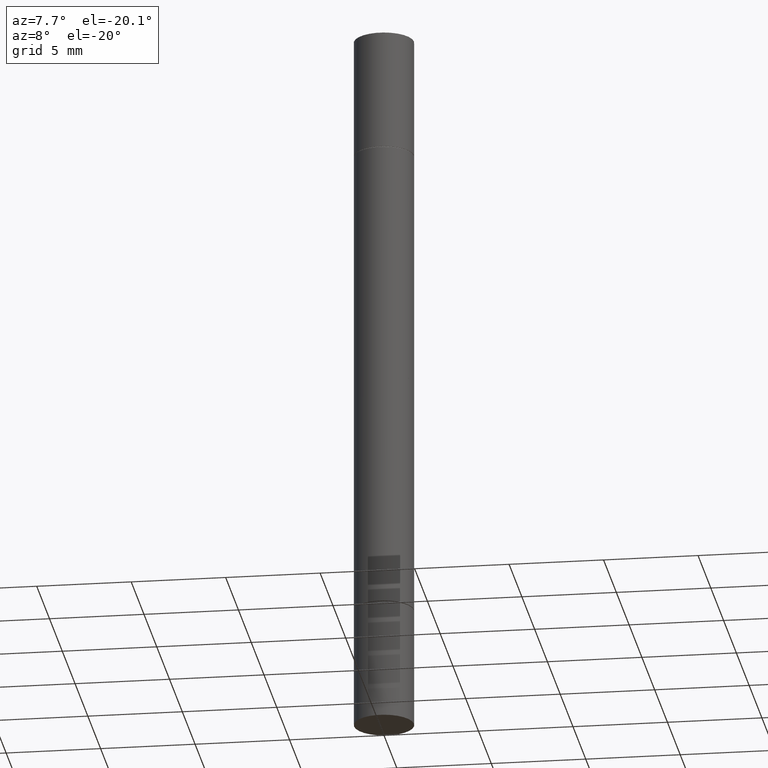
[diagram: clean part render]
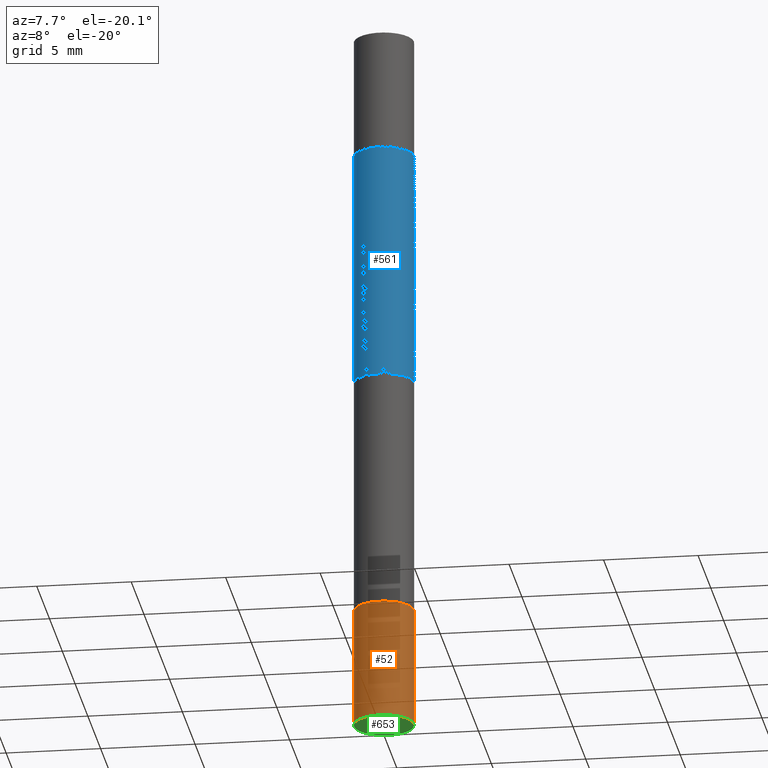
[diagram: same view with three faces highlighted in distinct colors, each labeled with its STEP entity id]
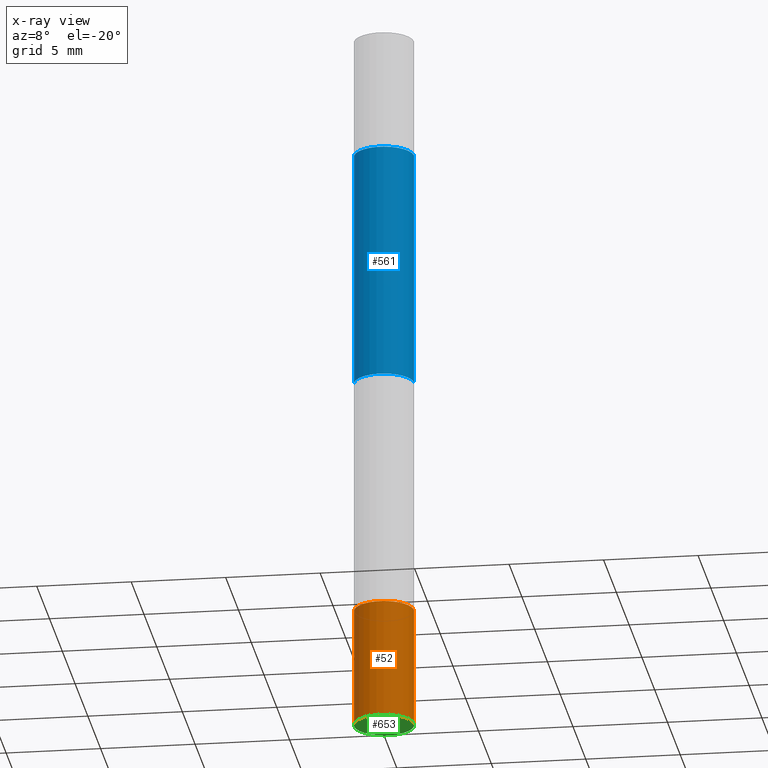
[diagram: x-ray of the same camera — body ghosted, the three highlighted faces saturated]
A machine part, auxiliary view with three faces highlighted in distinct colors.
The next image is the same camera in x-ray (body ghosted, the three faces saturated) — at least one of them is partly hidden behind the body in this view.
Their STEP definitions:

[orange] entity #52 — the highlighted cylindrical surface (edge-blend (fillet) strip) has radius 1.5875 mm, axis along (-0, 0, 1).
#9 = CARTESIAN_POINT ( 'NONE',  ( 0.06250000000000001388, -4.800786840909324141E-15, -1.250000000000000000 ) ) ;
#23 = ORIENTED_EDGE ( 'NONE', *, *, #214, .T. ) ;
#27 = VECTOR ( 'NONE', #264, 39.37007874015748143 ) ;
#31 = DIRECTION ( 'NONE',  ( -2.445468806185136597E-29, 3.491481338843145583E-15, 1.000000000000000000 ) ) ;
#40 = AXIS2_PLACEMENT_3D ( 'NONE', #641, #170, #481 ) ;
#52 = ADVANCED_FACE ( 'NONE', ( #141 ), #560, .T. ) ;
#109 = CARTESIAN_POINT ( 'NONE',  ( -0.06250000000000001388, -4.356697631059263102E-15, -1.500000000000000222 ) ) ;
#130 = EDGE_CURVE ( 'NONE', #448, #664, #149, .T. ) ;
#136 = AXIS2_PLACEMENT_3D ( 'NONE', #379, #330, #280 ) ;
#141 = FACE_OUTER_BOUND ( 'NONE', #680, .T. ) ;
#149 = CIRCLE ( 'NONE', #40, 0.06250000000000001388 ) ;
#157 = EDGE_CURVE ( 'NONE', #384, #448, #416, .T. ) ;
#170 = DIRECTION ( 'NONE',  ( -2.445468806185136597E-29, 3.491481338843145583E-15, 1.000000000000000000 ) ) ;
#214 = EDGE_CURVE ( 'NONE', #672, #664, #281, .T. ) ;
#244 = CARTESIAN_POINT ( 'NONE',  ( 0.06250000000000001388, -4.364351673553918173E-16, 3.047610484872460571E-30 ) ) ;
#264 = DIRECTION ( 'NONE',  ( -2.445468806185136877E-29, 3.491481338843145188E-15, 1.000000000000000000 ) ) ;
#280 = DIRECTION ( 'NONE',  ( 1.000000000000000000, -6.982962677686261189E-15, 0.000000000000000000 ) ) ;
#281 = LINE ( 'NONE', #244, #318 ) ;
#299 = CARTESIAN_POINT ( 'NONE',  ( 0.000000000000000000, 0.000000000000000000, 0.000000000000000000 ) ) ;
#318 = VECTOR ( 'NONE', #402, 39.37007874015748143 ) ;
#330 = DIRECTION ( 'NONE',  ( -2.445468806185136597E-29, 3.491481338843145583E-15, 1.000000000000000000 ) ) ;
#346 = CIRCLE ( 'NONE', #136, 0.06250000000000001388 ) ;
#369 = AXIS2_PLACEMENT_3D ( 'NONE', #299, #31, #548 ) ;
#379 = CARTESIAN_POINT ( 'NONE',  ( 3.668203209277704895E-29, -5.237222008264718177E-15, -1.500000000000000222 ) ) ;
#384 = VERTEX_POINT ( 'NONE', #109 ) ;
#402 = DIRECTION ( 'NONE',  ( -2.445468806185136877E-29, 3.491481338843145188E-15, 1.000000000000000000 ) ) ;
#416 = LINE ( 'NONE', #634, #27 ) ;
#434 = ORIENTED_EDGE ( 'NONE', *, *, #130, .F. ) ;
#435 = CARTESIAN_POINT ( 'NONE',  ( 0.06250000000000001388, -5.673657175620109846E-15, -1.500000000000000222 ) ) ;
#448 = VERTEX_POINT ( 'NONE', #524 ) ;
#481 = DIRECTION ( 'NONE',  ( 1.000000000000000000, -6.982962677686269077E-15, 0.000000000000000000 ) ) ;
#508 = ORIENTED_EDGE ( 'NONE', *, *, #157, .F. ) ;
#524 = CARTESIAN_POINT ( 'NONE',  ( -0.06250000000000001388, -4.356697631059263102E-15, -1.250000000000000000 ) ) ;
#548 = DIRECTION ( 'NONE',  ( 1.000000000000000000, -6.982962677686267499E-15, 4.876176775795935793E-29 ) ) ;
#560 = CYLINDRICAL_SURFACE ( 'NONE', #369, 0.06250000000000001388 ) ;
#575 = ORIENTED_EDGE ( 'NONE', *, *, #669, .T. ) ;
#634 = CARTESIAN_POINT ( 'NONE',  ( -0.06250000000000001388, 4.440892098500627148E-16, -3.074334431409317165E-30 ) ) ;
#641 = CARTESIAN_POINT ( 'NONE',  ( 3.056836007731421306E-29, -4.364351673553932471E-15, -1.250000000000000000 ) ) ;
#664 = VERTEX_POINT ( 'NONE', #9 ) ;
#669 = EDGE_CURVE ( 'NONE', #384, #672, #346, .T. ) ;
#672 = VERTEX_POINT ( 'NONE', #435 ) ;
#680 = EDGE_LOOP ( 'NONE', ( #508, #575, #23, #434 ) ) ;

[blue] entity #561 — the highlighted cylindrical surface (edge-blend (fillet) strip) has radius 1.5875 mm, axis along (-0, -0, -1).
#6 = CARTESIAN_POINT ( 'NONE',  ( 3.054390538925235704E-29, -8.756586887680336100E-16, -0.2509999999999998899 ) ) ;
#16 = CARTESIAN_POINT ( 'NONE',  ( 0.06249999999999996531, -2.183570013805587378E-15, -0.7499999999999998890 ) ) ;
#34 = EDGE_CURVE ( 'NONE', #662, #442, #437, .T. ) ;
#39 = CARTESIAN_POINT ( 'NONE',  ( 1.834101604638852167E-29, -2.618611004132358694E-15, -0.7499999999999998890 ) ) ;
#46 = CARTESIAN_POINT ( 'NONE',  ( 0.000000000000000000, -5.238278812796173300E-15, -1.499999999999999778 ) ) ;
#53 = DIRECTION ( 'NONE',  ( 1.000000000000000000, -6.982962677686264344E-15, 0.000000000000000000 ) ) ;
#122 = LINE ( 'NONE', #343, #581 ) ;
#128 = AXIS2_PLACEMENT_3D ( 'NONE', #6, #527, #53 ) ;
#138 = EDGE_LOOP ( 'NONE', ( #289, #186, #159, #176 ) ) ;
#150 = DIRECTION ( 'NONE',  ( -0.000000000000000000, -3.492185875197449130E-15, -1.000000000000000000 ) ) ;
#153 = CYLINDRICAL_SURFACE ( 'NONE', #526, 0.06249999999999996531 ) ;
#156 = LINE ( 'NONE', #219, #601 ) ;
#159 = ORIENTED_EDGE ( 'NONE', *, *, #34, .F. ) ;
#175 = CIRCLE ( 'NONE', #128, 0.06250000000000005551 ) ;
#176 = ORIENTED_EDGE ( 'NONE', *, *, #344, .F. ) ;
#181 = EDGE_CURVE ( 'NONE', #574, #428, #175, .T. ) ;
#186 = ORIENTED_EDGE ( 'NONE', *, *, #312, .T. ) ;
#219 = CARTESIAN_POINT ( 'NONE',  ( 0.06249999999999996531, -5.674713980151564181E-15, -1.499999999999999778 ) ) ;
#259 = AXIS2_PLACEMENT_3D ( 'NONE', #39, #150, #595 ) ;
#262 = CARTESIAN_POINT ( 'NONE',  ( -0.06250000000000005551, -4.468775639073129860E-16, -0.2509999999999998899 ) ) ;
#271 = DIRECTION ( 'NONE',  ( -2.445468806185136877E-29, -3.492890411551753071E-15, -1.000000000000000000 ) ) ;
#289 = ORIENTED_EDGE ( 'NONE', *, *, #181, .F. ) ;
#312 = EDGE_CURVE ( 'NONE', #574, #442, #122, .T. ) ;
#319 = CARTESIAN_POINT ( 'NONE',  ( -0.06249999999999996531, -1.318353721589475380E-15, -0.7499999999999998890 ) ) ;
#321 = CARTESIAN_POINT ( 'NONE',  ( 0.06250000000000005551, -1.312093856123426167E-15, -0.2509999999999998899 ) ) ;
#343 = CARTESIAN_POINT ( 'NONE',  ( -0.06249999999999996531, -4.809497687935452578E-15, -1.499999999999999778 ) ) ;
#344 = EDGE_CURVE ( 'NONE', #428, #662, #156, .T. ) ;
#428 = VERTEX_POINT ( 'NONE', #321 ) ;
#437 = CIRCLE ( 'NONE', #259, 0.06249999999999996531 ) ;
#442 = VERTEX_POINT ( 'NONE', #319 ) ;
#474 = DIRECTION ( 'NONE',  ( -2.445468806185136597E-29, -3.492890411551752677E-15, -1.000000000000000000 ) ) ;
#526 = AXIS2_PLACEMENT_3D ( 'NONE', #46, #474, #570 ) ;
#527 = DIRECTION ( 'NONE',  ( 2.445468806185136597E-29, 3.492890411551752677E-15, 1.000000000000000000 ) ) ;
#553 = DIRECTION ( 'NONE',  ( -2.445468806185136877E-29, -3.492890411551753071E-15, -1.000000000000000000 ) ) ;
#561 = ADVANCED_FACE ( 'NONE', ( #630 ), #153, .T. ) ;
#570 = DIRECTION ( 'NONE',  ( 1.000000000000000000, -6.982962677686266711E-15, 0.000000000000000000 ) ) ;
#574 = VERTEX_POINT ( 'NONE', #262 ) ;
#581 = VECTOR ( 'NONE', #553, 39.37007874015748143 ) ;
#595 = DIRECTION ( 'NONE',  ( 0.000000000000000000, 1.000000000000000000, -4.370956789862823516E-15 ) ) ;
#601 = VECTOR ( 'NONE', #271, 39.37007874015748143 ) ;
#630 = FACE_OUTER_BOUND ( 'NONE', #138, .T. ) ;
#662 = VERTEX_POINT ( 'NONE', #16 ) ;

[green] entity #653 — the highlighted planar face has unit normal (0, -0, -1).
#30 = ORIENTED_EDGE ( 'NONE', *, *, #669, .F. ) ;
#47 = ORIENTED_EDGE ( 'NONE', *, *, #110, .F. ) ;
#109 = CARTESIAN_POINT ( 'NONE',  ( -0.06250000000000001388, -4.356697631059263102E-15, -1.500000000000000222 ) ) ;
#110 = EDGE_CURVE ( 'NONE', #672, #384, #284, .T. ) ;
#115 = DIRECTION ( 'NONE',  ( 1.000000000000000000, -6.982962677686261189E-15, 0.000000000000000000 ) ) ;
#136 = AXIS2_PLACEMENT_3D ( 'NONE', #379, #330, #280 ) ;
#238 = DIRECTION ( 'NONE',  ( -1.000000000000000000, 6.982962677686265922E-15, -4.876176775795935793E-29 ) ) ;
#280 = DIRECTION ( 'NONE',  ( 1.000000000000000000, -6.982962677686261189E-15, 0.000000000000000000 ) ) ;
#283 = FACE_OUTER_BOUND ( 'NONE', #554, .T. ) ;
#284 = CIRCLE ( 'NONE', #514, 0.06250000000000001388 ) ;
#290 = DIRECTION ( 'NONE',  ( 2.438088387897960049E-29, -3.491481338843145188E-15, -1.000000000000000000 ) ) ;
#330 = DIRECTION ( 'NONE',  ( -2.445468806185136597E-29, 3.491481338843145583E-15, 1.000000000000000000 ) ) ;
#331 = CARTESIAN_POINT ( 'NONE',  ( 3.668203209277704895E-29, -5.237222008264718177E-15, -1.500000000000000222 ) ) ;
#338 = PLANE ( 'NONE',  #431 ) ;
#346 = CIRCLE ( 'NONE', #136, 0.06250000000000001388 ) ;
#379 = CARTESIAN_POINT ( 'NONE',  ( 3.668203209277704895E-29, -5.237222008264718177E-15, -1.500000000000000222 ) ) ;
#384 = VERTEX_POINT ( 'NONE', #109 ) ;
#431 = AXIS2_PLACEMENT_3D ( 'NONE', #486, #290, #238 ) ;
#435 = CARTESIAN_POINT ( 'NONE',  ( 0.06250000000000001388, -5.673657175620109846E-15, -1.500000000000000222 ) ) ;
#473 = DIRECTION ( 'NONE',  ( -2.445468806185136597E-29, 3.491481338843145583E-15, 1.000000000000000000 ) ) ;
#486 = CARTESIAN_POINT ( 'NONE',  ( 4.364351673554284500E-16, 0.06249999999999478195, -1.500000000000000444 ) ) ;
#514 = AXIS2_PLACEMENT_3D ( 'NONE', #331, #473, #115 ) ;
#554 = EDGE_LOOP ( 'NONE', ( #47, #30 ) ) ;
#653 = ADVANCED_FACE ( 'NONE', ( #283 ), #338, .T. ) ;
#669 = EDGE_CURVE ( 'NONE', #384, #672, #346, .T. ) ;
#672 = VERTEX_POINT ( 'NONE', #435 ) ;